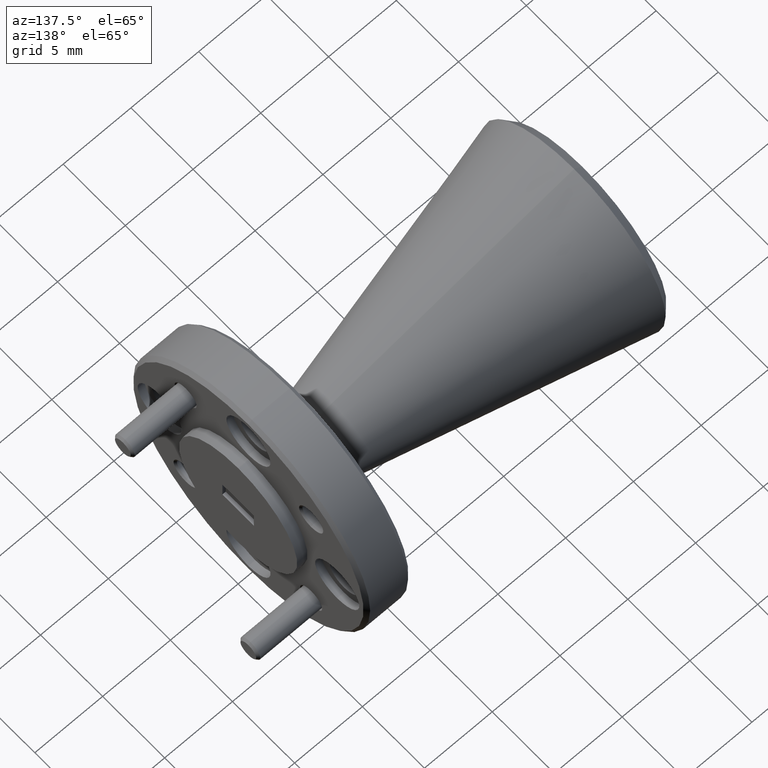
[diagram: clean part render]
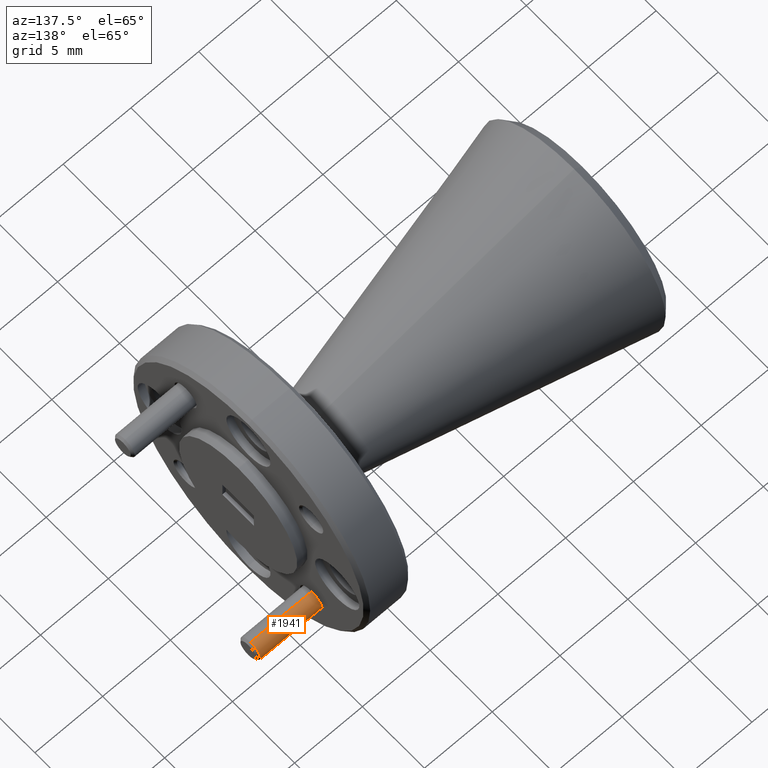
[diagram: same view with one face highlighted and labeled with its STEP entity id]
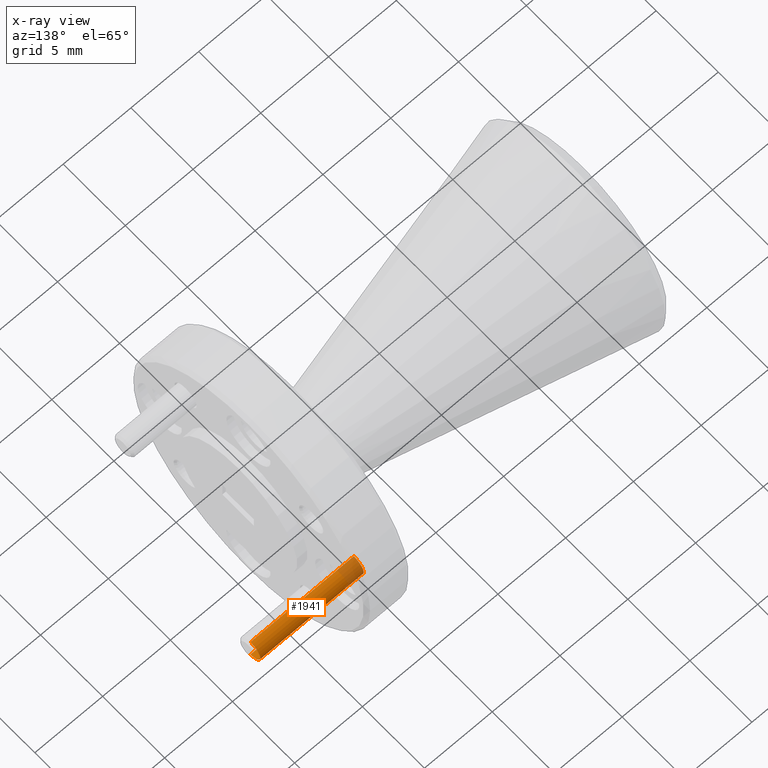
[diagram: x-ray of the same camera — body ghosted, the highlighted face saturated]
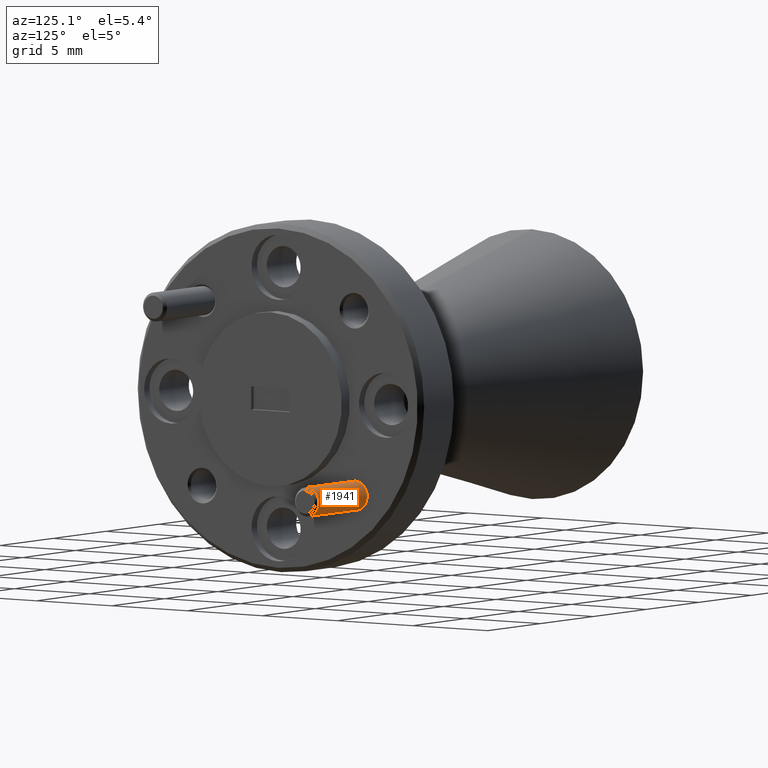
[diagram: same view with one face highlighted and labeled with its STEP entity id]
A machine part, auxiliary view. The second image highlights one B-rep face of the part: STEP entity #1941.
The next image is the same camera in x-ray: the body ghosted, the highlighted face saturated — about 16% of this face is hidden behind the body in this view.
A second angle (auxiliary view) of the same face is appended — the face is thin or edge-on in the first view.
In plain terms, the highlighted cylindrical surface (edge-blend (fillet) strip) has radius 0.7938 mm, axis along (1, -0, 0).
Its self-contained STEP definition (entity closure, byte-faithful):
#4 = CIRCLE ( 'NONE', #1782, 0.03125000000000093000 ) ;
#19 = DIRECTION ( 'NONE',  ( -5.463695987328363700E-016, 4.370956789862691000E-015, -1.000000000000000000 ) ) ;
#133 = LINE ( 'NONE', #856, #1174 ) ;
#151 = DIRECTION ( 'NONE',  ( 1.000000000000000000, -2.996702551964277900E-016, 5.818496234929236900E-016 ) ) ;
#270 = EDGE_CURVE ( 'NONE', #371, #587, #4, .T. ) ;
#335 = CARTESIAN_POINT ( 'NONE',  ( -0.1600000000000000600, 0.1988737822087164000, -0.1988737822087165400 ) ) ;
#371 = VERTEX_POINT ( 'NONE', #1858 ) ;
#429 = CARTESIAN_POINT ( 'NONE',  ( 0.1462499999999857500, 0.1988737822087162100, -0.1676237822087076100 ) ) ;
#439 = AXIS2_PLACEMENT_3D ( 'NONE', #1540, #1702, #19 ) ;
#587 = VERTEX_POINT ( 'NONE', #606 ) ;
#597 = ORIENTED_EDGE ( 'NONE', *, *, #1255, .T. ) ;
#606 = CARTESIAN_POINT ( 'NONE',  ( -0.1537500000000006600, 0.1988737822087162100, -0.1676237822087121600 ) ) ;
#671 = CARTESIAN_POINT ( 'NONE',  ( -0.1600000000000001100, 0.1988737822087165400, -0.2301237822087174900 ) ) ;
#701 = CARTESIAN_POINT ( 'NONE',  ( -0.1537500000000006400, 0.1988737822087142400, -0.1988737822087121900 ) ) ;
#738 = EDGE_LOOP ( 'NONE', ( #974, #597, #1184, #1199 ) ) ;
#835 = DIRECTION ( 'NONE',  ( -1.092739197465672700E-015, 4.370956789862691000E-015, -1.000000000000000000 ) ) ;
#854 = DIRECTION ( 'NONE',  ( 1.000000000000000000, -2.996702551964277900E-016, 5.818496234929236900E-016 ) ) ;
#855 = DIRECTION ( 'NONE',  ( 1.000000000000000000, -2.996702551964277900E-016, 5.818496234929236900E-016 ) ) ;
#856 = CARTESIAN_POINT ( 'NONE',  ( -0.1600000000000000300, 0.1988737822087162700, -0.1676237822087156300 ) ) ;
#861 = EDGE_CURVE ( 'NONE', #1556, #1571, #1687, .T. ) ;
#974 = ORIENTED_EDGE ( 'NONE', *, *, #270, .T. ) ;
#1001 = FACE_OUTER_BOUND ( 'NONE', #738, .T. ) ;
#1056 = LINE ( 'NONE', #671, #1873 ) ;
#1174 = VECTOR ( 'NONE', #2163, 39.37007874015748100 ) ;
#1184 = ORIENTED_EDGE ( 'NONE', *, *, #861, .T. ) ;
#1199 = ORIENTED_EDGE ( 'NONE', *, *, #1987, .F. ) ;
#1227 = DIRECTION ( 'NONE',  ( -5.463695987328363700E-016, 4.370956789862691000E-015, -1.000000000000000000 ) ) ;
#1255 = EDGE_CURVE ( 'NONE', #587, #1556, #133, .T. ) ;
#1540 = CARTESIAN_POINT ( 'NONE',  ( 0.1462499999999857800, 0.1988737822087134100, -0.1988737822087076100 ) ) ;
#1556 = VERTEX_POINT ( 'NONE', #429 ) ;
#1571 = VERTEX_POINT ( 'NONE', #1924 ) ;
#1687 = CIRCLE ( 'NONE', #439, 0.03125000000000093000 ) ;
#1702 = DIRECTION ( 'NONE',  ( -1.000000000000000000, 2.996702551964277900E-016, -5.818496234929236900E-016 ) ) ;
#1782 = AXIS2_PLACEMENT_3D ( 'NONE', #701, #854, #1227 ) ;
#1858 = CARTESIAN_POINT ( 'NONE',  ( -0.1537500000000006600, 0.1988737822087143800, -0.2301237822087131000 ) ) ;
#1873 = VECTOR ( 'NONE', #151, 39.37007874015748100 ) ;
#1898 = CYLINDRICAL_SURFACE ( 'NONE', #2016, 0.03125000000000093000 ) ;
#1924 = CARTESIAN_POINT ( 'NONE',  ( 0.1462499999999857500, 0.1988737822087135500, -0.2301237822087085200 ) ) ;
#1941 = ADVANCED_FACE ( 'NONE', ( #1001 ), #1898, .T. ) ;
#1987 = EDGE_CURVE ( 'NONE', #371, #1571, #1056, .T. ) ;
#2016 = AXIS2_PLACEMENT_3D ( 'NONE', #335, #855, #835 ) ;
#2163 = DIRECTION ( 'NONE',  ( 1.000000000000000000, -2.996702551964277900E-016, 5.818496234929236900E-016 ) ) ;